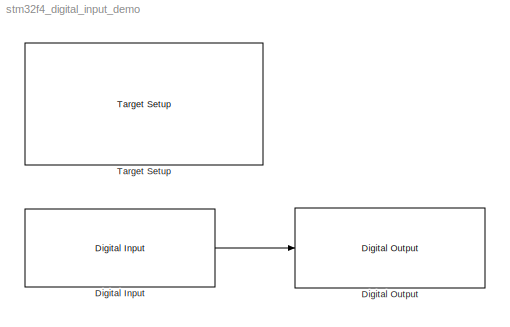
MODEL stm32f4_digital_input_demo
KIND model
CONFIG PreLoadFcn = waijung.modelPreload; % Required for working with Waijung Blockset. Do not remove.
BLOCK [Reference] Digital Input  REF=stm32f4_io_lib/Digital Input
  Ports = [0, 1]
  SourceBlock = stm32f4_io_lib/Digital Input
  SourceType = stm32f4_digital_input
  bitbandingstr = \n#define DigitalInput_B2 Peripheral_BB(GPIOB->IDR, 2)  /* Output pin */
  blockid = DigitalInput
  cinputportlabel = In1, In2
  coutputportlabel = Out1, Out2
  enablecustomportlabel = off
  glabalinit = off
  pinstr = GPIO_Pin_2
  port = B
  porttype = None
  porttypestr = NOPULL
  sampletime = 0.01
  sampletimestr = 0.01
  speed = 100
  use_pin0 = off
  use_pin1 = off
  use_pin10 = off
  use_pin11 = off
  use_pin12 = off
  use_pin13 = off
  use_pin14 = off
  use_pin15 = off
  use_pin2 = on
  use_pin3 = off
  use_pin4 = off
  use_pin5 = off
  use_pin6 = off
  use_pin7 = off
  use_pin8 = off
  use_pin9 = off
  usedpinarray = [0  0  1  0  0  0  0  0  0  0  0  0  0  0  0  0]
BLOCK [Reference] Digital Output  REF=stm32f4_io_lib/Digital Output
  Ports = [1]
  SourceBlock = stm32f4_io_lib/Digital Output
  SourceType = stm32f4_digital_output
  bitbandingstr = \n#define DigitalOutput_D12 Peripheral_BB(GPIOD->ODR, 12)  /* Output pin */
  blockid = DigitalOutput
  cinputportlabel = In1, In2
  coutputportlabel = 0
  enablecustomportlabel = off
  globalinit = off
  pinstr = GPIO_Pin_12
  port = D
  porttype = Push Pull
  porttypestr = PP
  sampletime = -1
  sampletimestr = 0.01
  speed = 100
  use_bitband = off
  use_pin0 = off
  use_pin1 = off
  use_pin10 = off
  use_pin11 = off
  use_pin12 = on
  use_pin13 = off
  use_pin14 = off
  use_pin15 = off
  use_pin2 = off
  use_pin3 = off
  use_pin4 = off
  use_pin5 = off
  use_pin6 = off
  use_pin7 = off
  use_pin8 = off
  use_pin9 = off
  usedpinarray = [0  0  0  0  0  0  0  0  0  0  0  0  1  0  0  0]
BLOCK [Reference] Target Setup  REF=stm32f4_device_config_lib/Target Setup
  Ports = []
  Priority = 100
  SourceBlock = stm32f4_device_config_lib/Target Setup
  SourceType = stm32f4_target_setup
  assemblercontrolstr = $(patsubst %, -I%, .) -mcpu=cortex-m4 -mthumb -mthumb-interwork -mfloat-abi=hard -mfpu=fpv4-sp-d16 -ffast-math -Wall -Wextra -Ofast -Wa,-amhls=$(<:.s=.lst) -D__STACK_SIZE=$(STACK_SIZE) -D__HEAP_SIZE=$(HEAP_SIZE)
  blockid = TargetSetup
  clockconfig = HSEOSC-8MHz
  compiler = GNU ARM
  compilercontrolstr = $(patsubst %, -I%, .) -mcpu=cortex-m4 -mthumb -mthumb-interwork -mfloat-abi=hard -mfpu=fpv4-sp-d16 -ffast-math -Wall -Wextra -Ofast
  editctrlstr = on
  enableautocompiledownload = on
  execprofile = None
  flashlength = 1024k
  flashorigin = 0x8000000
  fullchiperase = off
  hclk = 168000000
  heapsize = 0x200
  hseval = 8000000
  lastprofileruart = 1
  linkercontrolstr = -T$(LD_SCRIPT) -g -Wl,-Map=$(MAP),--cref,--no-warn-mismatch -mcpu=cortex-m4 -mthumb -mthumb-interwork -mfloat-abi=hard -mfpu=fpv4-sp-d16 -specs=nosys.specs
  manualsetsampletime = off
  mcu = STM32F417IG (LQFP176)
  mcustr = STM32F417IG
  previous_compiler = GNU ARM
  profilerbaud = 115200
  profilerinitstr = 0.01,168000000,1680000,115200,0
  profilertxpin = D8
  profileruart = 1
  programmerinterface = ST-Link
  ramlength = 128k
  ramorigin = 0x20000000
  runafterdownload = on
  sampletime = 0.01
  showmemoryconfiguration = off
  stacksize = 0x400
  system_stm32f4xx_c_path = <path>
  systickreloadvalue = 1680000
  useextram = off
LINE Digital Input:1 -> Digital Output:1
note: 1 file-system path scrubbed to <path> (not preserved elsewhere — flat text is the only slx artifact)
